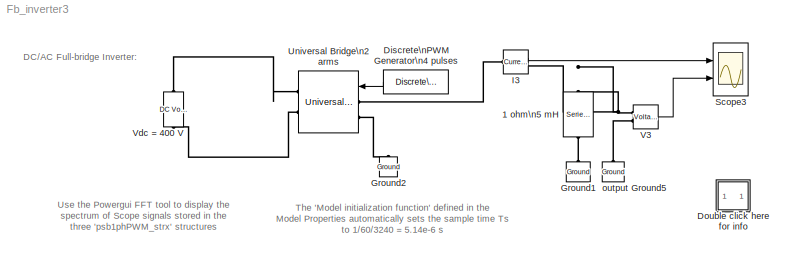
MODEL Fb_inverter3
KIND model
BLOCK [Reference] 1 ohm\n5 mH   REF=powerlib/Elements/Series RLC Branch
  AttributesFormatString = \\n
  Capacitance = inf
  Inductance = 5e-03
  LConnTagsString = __new0
  LeftPortType = p1
  Measurements = None
  PhysicalDomain = powersysdomain
  Ports = [0, 0, 0, 0, 0, 1, 1]
  RConnTagsString = __new0
  Resistance = 1
  RightPortType = p1
  SourceBlock = powerlib/Elements/Series RLC Branch
  SourceType = Series RLC Branch
  SubClassName = unknown
BLOCK [Reference] Discrete\nPWM Generator\n4 pulses  REF=powerlib_extras/Discrete \nControl Blocks/Discrete\nPWM Generator
  Fc = 1080
  Freq = 60
  GeneratorMode = 2-arm  bridge (4 pulses)
  Internal = on
  Phase = 0
  Ports = [0, 1]
  ShowPortLabels = on
  SourceBlock = powerlib_extras/Discrete \nControl Blocks/Discrete\nPWM Generator
  SourceType = Discrete PWM Generator
  Ts = Ts
  mIndex = 0.8
BLOCK [SubSystem] Double click here for info
  MaskDisplay = disp('?')
  MaskIconFrame = on
  MaskIconOpaque = on
  MaskIconRotate = none
  MaskIconUnits = autoscale
  MinAlgLoopOccurrences = off
  Ports = []
  RTWSystemCode = Auto
  TreatAsAtomicUnit = off
BLOCK [Reference] Ground1  REF=powerlib/Elements/Ground
  AttributesFormatString = \\n
  LConnTagsString = a
  LeftPortType = p1
  PhysicalDomain = powersysdomain
  Ports = [0, 0, 0, 0, 0, 1]
  RightPortType = p1
  SourceBlock = powerlib/Elements/Ground
  SourceType = Ground
  SubClassName = unknown
BLOCK [Reference] Ground2  REF=powerlib/Elements/Ground
  AttributesFormatString = \\n
  LConnTagsString = a
  LeftPortType = p1
  PhysicalDomain = powersysdomain
  Ports = [0, 0, 0, 0, 0, 1]
  RightPortType = p1
  SourceBlock = powerlib/Elements/Ground
  SourceType = Ground
  SubClassName = unknown
BLOCK [Reference] I3   REF=powerlib/Measurements/Current Measurement
  AttributesFormatString = \\n
  OutputType = Magnitude
  PSBequivalent = 0
  PhasorSimulation = off
  Ports = [0, 1, 0, 0, 0, 1, 1]
  ShowPortLabels = on
  SourceBlock = powerlib/Measurements/Current Measurement
  SourceType = Current Measurement
  Tag = PoWeRsYsTeMmEaSuReMeNt
BLOCK [Scope] Scope3
  DataFormat = StructureWithTime
  LimitDataPoints = off
  MaxDataPoints = 500000
  NumInputPorts = 2
  Ports = [2]
  SaveName = psb1phPWM3_str
  SaveToWorkspace = on
  TimeRange = 0.1
  YMax = 200~500
  YMin = -200~-500
  ZoomMode = yonly
BLOCK [Reference] Universal Bridge\n2 arms  REF=powerlib/Power\nElectronics/Universal Bridge
  Arms = 2
  AttributesFormatString = \\n
  Device = IGBT / Diodes
  ForwardVoltage = .8
  ForwardVoltages = [  1  1  ]
  GTOparameters = [ 10e-6 , 20e-6 ]
  IGBTparameters = [ 1e-6 , 2e-6 ]
  Lon = 0
  Measurements = None
  Ports = [1, 0, 0, 0, 0, 2, 2]
  Ron = 1e-4
  ShowPortLabels = on
  SnubberCapacitance = inf
  SnubberResistance = 10000
  SourceBlock = powerlib/Power\nElectronics/Universal Bridge
  SourceType = Universal Bridge
BLOCK [Reference] V3  REF=powerlib/Measurements/Voltage Measurement
  AttributesFormatString = \\n
  OutputType = Magnitude
  PSBequivalent = 0
  PhasorSimulation = off
  Ports = [0, 1, 0, 0, 0, 2]
  ShowPortLabels = on
  SourceBlock = powerlib/Measurements/Voltage Measurement
  SourceType = Voltage Measurement
  Tag = PoWeRsYsTeMmEaSuReMeNt
BLOCK [Reference] Vdc  = 400 V    REF=powerlib/Electrical\nSources/DC Voltage Source
  Amplitude = 400
  AttributesFormatString = \\n
  Description = source block
  Measurements = None
  Ports = [0, 0, 0, 0, 0, 1, 1]
  ShowPortLabels = on
  SourceBlock = powerlib/Electrical\nSources/DC Voltage Source
  SourceType = DC Voltage Source
BLOCK [Reference] output Ground5  REF=powerlib/Elements/Ground
  AttributesFormatString = \\n
  LConnTagsString = a
  LeftPortType = p1
  PhysicalDomain = powersysdomain
  Ports = [0, 0, 0, 0, 0, 1]
  RightPortType = p1
  SourceBlock = powerlib/Elements/Ground
  SourceType = Ground
  SubClassName = unknown
ANNOTATION (root): DC/AC Full-bridge Inverter:
ANNOTATION (root): The 'Model initialization function' defined in the\nModel Properties automatically sets the sample time Ts\nto 1/60/3240 = 5.14e-6 s
ANNOTATION (root): Use the Powergui FFT tool to display the\nspectrum of Scope signals stored in the\nthree 'psb1phPWM_strx' structures
ANNOTATION Double click here for info: Circuit Description
ANNOTATION Double click here for info: Demonstration
ANNOTATION Double click here for info: G. Sybille and P. Giroux (Hydro-Quebec)
ANNOTATION Double click here for info: Run the simulation and observe the following two waveforms on the three Scope blocks:\ncurrent into the load (trace 1), voltage generated by the PWM inverter (trace 2). \n\nOnce the simulation is completed, open the Powergui and select \"FFT Analysis\" to display the 0 - 5000 Hz frequency spectrum of signals saved \nin the three \"psb1phPWMx_str\" structures. The FFT will be performed on a 2-cycle...<+1432ch>
ANNOTATION Double click here for info: The system consists of three independant circuits illustrating various PWM DC/DC and DC/AC inverters.\nAll converters are controlled in open loop with the Discrete PWM Generator block available in the Extras/Discrete Control Blocks library.\nThe three circuits use the same DC voltage (Vdc = 400V), carrier frequency (1080 Hz) and modulation index (m = 0.8) .\nFrom top to bottom, the three circuits ...<+470ch>
ANNOTATION Double click here for info: This demonstration illustrates use of the Universal Bridge and Discrete PWM Pulse Generator blocks\nIt also demonstrates harmonic analysis of PWM waveforms using the Powergui/FFT tool.
LINE Discrete\nPWM Generator\n4 pulses:1 -> Universal Bridge\n2 arms:1
LINE I3 :1 -> Scope3:1
LINE V3:1 -> Scope3:2
PNET net1: 1 ohm\n5 mH :LConn1 -- I3 :RConn1 -- V3:LConn1
PLINE 1 ohm\n5 mH :RConn1 -- Ground1:LConn1
PLINE Ground2:LConn1 -- Universal Bridge\n2 arms:LConn2
PLINE I3 :LConn1 -- Universal Bridge\n2 arms:LConn1
PLINE Universal Bridge\n2 arms:RConn1 -- Vdc  = 400 V  :RConn1
PLINE Universal Bridge\n2 arms:RConn2 -- Vdc  = 400 V  :LConn1
PLINE V3:LConn2 -- output Ground5:LConn1
note: PNET lines group multi-terminal physical nets as a canonical sorted terminal list (undirected conserving connections); 2-terminal nets keep the pairwise PLINE form
